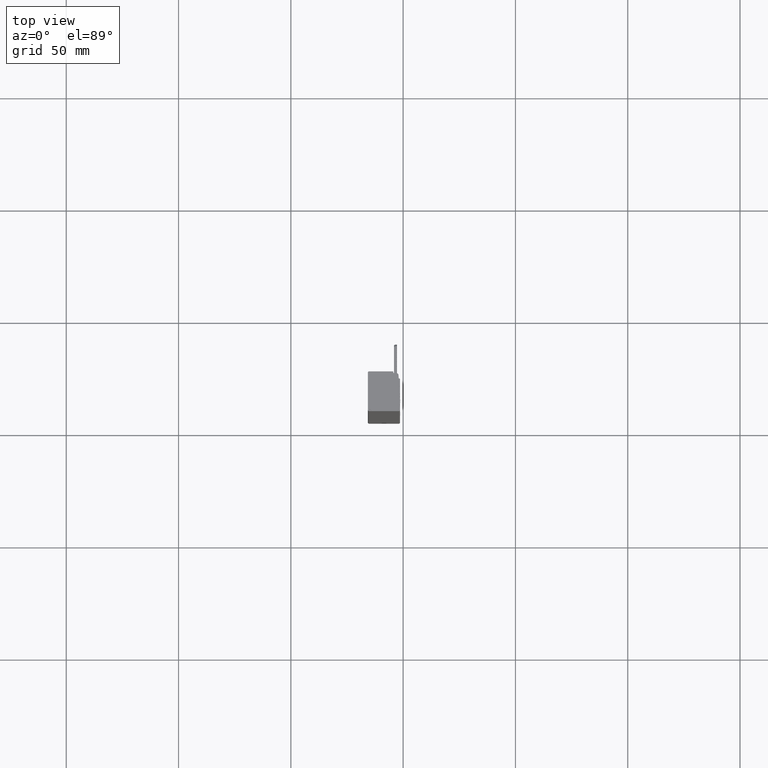
[diagram: clean part render]
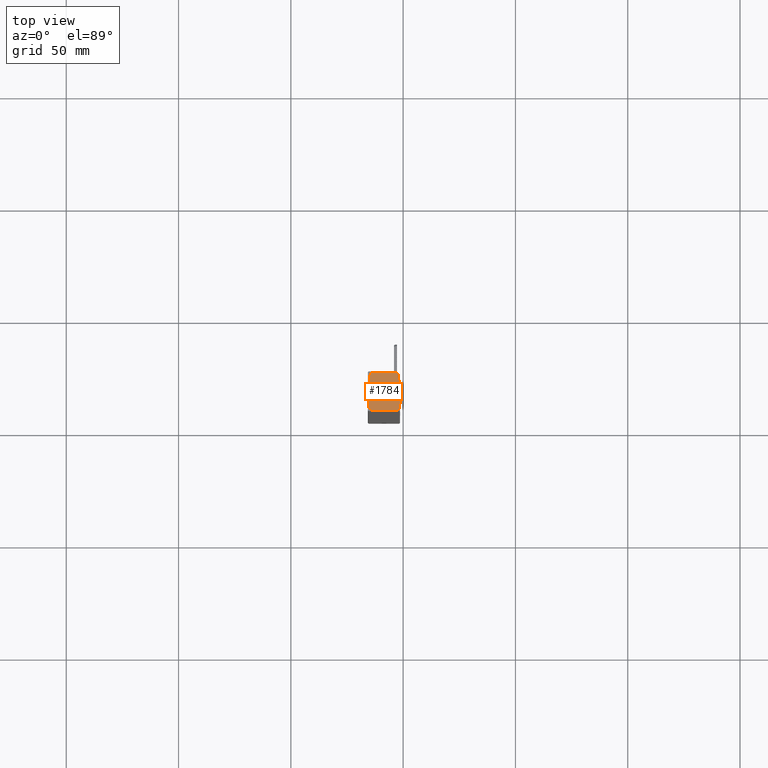
[diagram: same view with one face highlighted and labeled with its STEP entity id]
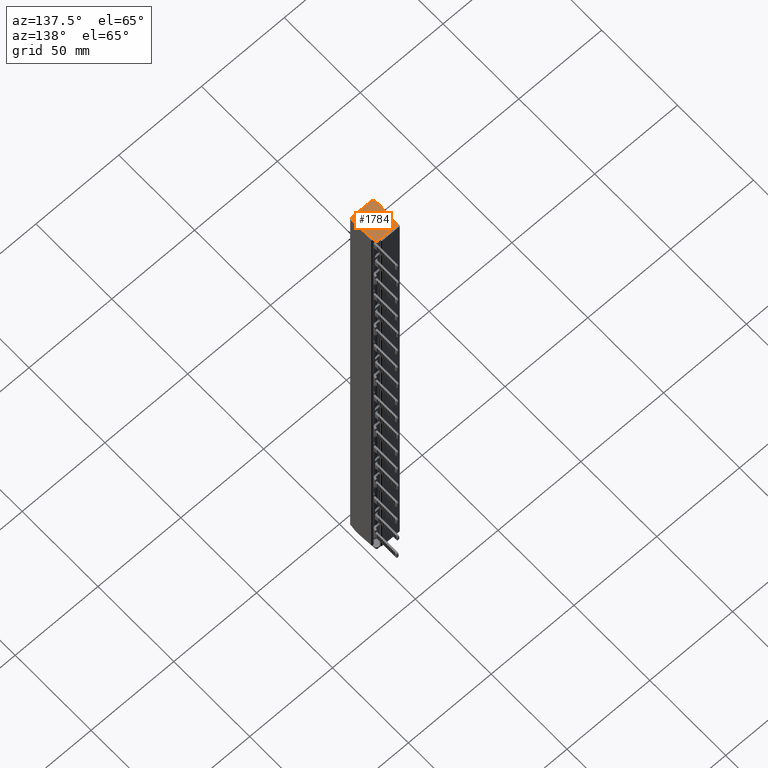
[diagram: same view with one face highlighted and labeled with its STEP entity id]
A machine part, top view. The second image highlights one B-rep face of the part: STEP entity #1784.
A second angle (auxiliary view) of the same face is appended — the face is thin or edge-on in the first view.
In plain terms, the highlighted planar face has unit normal (-0, 0, -1).
Its self-contained STEP definition (entity closure, byte-faithful):
#741 = EDGE_CURVE ( 'NONE', #7545, #7583, #32114, .T. ) ;
#745 = EDGE_CURVE ( 'NONE', #7583, #7519, #30167, .T. ) ;
#753 = EDGE_CURVE ( 'NONE', #7503, #7532, #32070, .T. ) ;
#775 = EDGE_CURVE ( 'NONE', #7503, #7613, #12866, .T. ) ;
#776 = EDGE_CURVE ( 'NONE', #7519, #7549, #32103, .T. ) ;
#777 = EDGE_CURVE ( 'NONE', #7507, #7613, #30165, .T. ) ;
#778 = EDGE_CURVE ( 'NONE', #7545, #7532, #12830, .T. ) ;
#782 = EDGE_CURVE ( 'NONE', #7543, #7549, #12852, .T. ) ;
#800 = EDGE_CURVE ( 'NONE', #7543, #7507, #32142, .T. ) ;
#1784 = ADVANCED_FACE ( 'NONE', ( #16747 ), #16722, .F. ) ;
#7503 = VERTEX_POINT ( 'NONE', #24971 ) ;
#7507 = VERTEX_POINT ( 'NONE', #25016 ) ;
#7519 = VERTEX_POINT ( 'NONE', #25069 ) ;
#7532 = VERTEX_POINT ( 'NONE', #25038 ) ;
#7543 = VERTEX_POINT ( 'NONE', #25078 ) ;
#7545 = VERTEX_POINT ( 'NONE', #25083 ) ;
#7549 = VERTEX_POINT ( 'NONE', #25048 ) ;
#7583 = VERTEX_POINT ( 'NONE', #25052 ) ;
#7613 = VERTEX_POINT ( 'NONE', #25080 ) ;
#8494 = EDGE_LOOP ( 'NONE', ( #27996, #27833, #27902, #27923, #27835, #27972, #28000, #27951, #27953 ) ) ;
#12685 = CARTESIAN_POINT ( 'NONE',  ( 747.9273182331131700, 271.2303188408080800, 220.2761870778997500 ) ) ;
#12691 = CARTESIAN_POINT ( 'NONE',  ( 746.9361667977062800, 271.1554394107350300, 220.2761870779001200 ) ) ;
#12693 = DIRECTION ( 'NONE',  ( -1.000000000000000000, 0.0000000000000000000, 3.630092859321160300E-013 ) ) ;
#12700 = CARTESIAN_POINT ( 'NONE',  ( 748.1523828007293600, 268.2512217867913500, 220.2761870778997500 ) ) ;
#12701 = CARTESIAN_POINT ( 'NONE',  ( 748.4124181040291400, 265.2733481653543800, 220.2761870778996400 ) ) ;
#12702 = CARTESIAN_POINT ( 'NONE',  ( 748.5802440432986500, 261.7312418943985800, 220.2761870778995800 ) ) ;
#12703 = CARTESIAN_POINT ( 'NONE',  ( 748.6025064608710400, 261.1737771771862500, 220.2761870778995800 ) ) ;
#12704 = CARTESIAN_POINT ( 'NONE',  ( 748.6367497531689400, 260.0598900168788500, 220.2761870778995800 ) ) ;
#12723 = DIRECTION ( 'NONE',  ( -3.579359031391503700E-013, 0.0000000000000000000, -1.000000000000000000 ) ) ;
#12733 = DIRECTION ( 'NONE',  ( -1.000000000000000000, 0.0000000000000000000, 3.630092859321160300E-013 ) ) ;
#12734 = CARTESIAN_POINT ( 'NONE',  ( 748.6552312605528000, 259.5028510379296400, 220.2761870778995800 ) ) ;
#12745 = CARTESIAN_POINT ( 'NONE',  ( 736.2077294437911000, 271.1554394107350300, 220.2761870779039600 ) ) ;
#12747 = CARTESIAN_POINT ( 'NONE',  ( 748.5996878920602700, 258.1098505685099600, 220.2761870778995800 ) ) ;
#12752 = DIRECTION ( 'NONE',  ( -3.579359031391503700E-013, 0.0000000000000000000, -1.000000000000000000 ) ) ;
#12770 = CARTESIAN_POINT ( 'NONE',  ( 748.4631548412812700, 257.2782742347265000, 220.2761870778996400 ) ) ;
#12774 = CARTESIAN_POINT ( 'NONE',  ( 748.2974998823941600, 256.4487409166395700, 220.2761870778996100 ) ) ;
#12823 = CARTESIAN_POINT ( 'NONE',  ( 734.6927173035053300, 257.2899769730117900, 220.2761870779044700 ) ) ;
#12824 = DIRECTION ( 'NONE',  ( -1.000000000000000000, 0.0000000000000000000, 3.630092859321160300E-013 ) ) ;
#12826 = CARTESIAN_POINT ( 'NONE',  ( 734.5826635521496000, 261.8342988816320900, 220.2761870779045200 ) ) ;
#12830 = LINE ( 'NONE', #12865, #32076 ) ;
#12831 = CARTESIAN_POINT ( 'NONE',  ( 735.0738748169757200, 269.1958145676104600, 220.2761870779043000 ) ) ;
#12834 = CARTESIAN_POINT ( 'NONE',  ( 734.5235459777949200, 260.1327937520780400, 220.2761870779045200 ) ) ;
#12836 = CARTESIAN_POINT ( 'NONE',  ( 734.7197909647706000, 264.6690396290242700, 220.2761870779044700 ) ) ;
#12837 = CARTESIAN_POINT ( 'NONE',  ( 734.8968304165304100, 266.9325015974168900, 220.2761870779044100 ) ) ;
#12838 = DIRECTION ( 'NONE',  ( -1.000000000000000000, -0.0000000000000000000, -0.0000000000000000000 ) ) ;
#12840 = CARTESIAN_POINT ( 'NONE',  ( 734.5594536960618400, 261.2672304678915800, 220.2761870779045200 ) ) ;
#12842 = CARTESIAN_POINT ( 'NONE',  ( 748.1312168841221800, 255.6494153144361400, 220.2761870779041300 ) ) ;
#12843 = CARTESIAN_POINT ( 'NONE',  ( 734.5034713028391000, 259.5647887885986100, 220.2761870779045200 ) ) ;
#12845 = DIRECTION ( 'NONE',  ( 1.000000000000000000, 4.210712518863409700E-015, -0.0000000000000000000 ) ) ;
#12852 = LINE ( 'NONE', #12842, #32077 ) ;
#12857 = CARTESIAN_POINT ( 'NONE',  ( 734.5540811426660600, 258.1357709160637900, 220.2761870779045200 ) ) ;
#12858 = DIRECTION ( 'NONE',  ( -0.06996254797235183800, -0.9975496187564889500, -0.0000000000000000000 ) ) ;
#12859 = DIRECTION ( 'NONE',  ( -3.579359031391503700E-013, 0.0000000000000000000, -1.000000000000000000 ) ) ;
#12862 = CARTESIAN_POINT ( 'NONE',  ( 735.0738748169757200, 269.1958145676104600, 220.2761870779043200 ) ) ;
#12863 = CARTESIAN_POINT ( 'NONE',  ( 734.8609481584409200, 256.4485228718443800, 220.2761870779044700 ) ) ;
#12864 = CARTESIAN_POINT ( 'NONE',  ( 747.3227694801188400, 256.6433912180461300, 220.2761870778999800 ) ) ;
#12865 = CARTESIAN_POINT ( 'NONE',  ( 735.2810238450030100, 272.1494153143450500, 220.2761870779001200 ) ) ;
#12866 = LINE ( 'NONE', #12831, #32080 ) ;
#12886 = DIRECTION ( 'NONE',  ( -1.000000000000000000, 0.0000000000000000000, 3.630092859321160300E-013 ) ) ;
#12904 = CARTESIAN_POINT ( 'NONE',  ( 735.8356349925605900, 256.6433912180459100, 220.2761870779041300 ) ) ;
#12907 = DIRECTION ( 'NONE',  ( -3.579359031391503700E-013, 0.0000000000000000000, -1.000000000000000000 ) ) ;
#16722 = PLANE ( 'NONE',  #22656 ) ;
#16738 = DIRECTION ( 'NONE',  ( -3.579359031391503700E-013, 0.0000000000000000000, -1.000000000000000000 ) ) ;
#16747 = FACE_OUTER_BOUND ( 'NONE', #8494, .T. ) ;
#16767 = CARTESIAN_POINT ( 'NONE',  ( 734.6100890346739300, 262.4012470311102400, 220.2761870779045200 ) ) ;
#16769 = DIRECTION ( 'NONE',  ( -1.000000000000000000, 0.0000000000000000000, 3.579359031391503700E-013 ) ) ;
#22656 = AXIS2_PLACEMENT_3D ( 'NONE', #16767, #16738, #16769 ) ;
#24971 = CARTESIAN_POINT ( 'NONE',  ( 735.2161891600918600, 271.2249804975748500, 220.2761870779043000 ) ) ;
#25016 = CARTESIAN_POINT ( 'NONE',  ( 734.8609481584409200, 256.4485228718443800, 220.2761870779044700 ) ) ;
#25038 = CARTESIAN_POINT ( 'NONE',  ( 736.2077294437911000, 272.1494153143450500, 220.2761870779020200 ) ) ;
#25048 = CARTESIAN_POINT ( 'NONE',  ( 747.3227694801187200, 255.6494153144361400, 220.2761870779020200 ) ) ;
#25052 = CARTESIAN_POINT ( 'NONE',  ( 747.9273182331131700, 271.2303188408080800, 220.2761870778997500 ) ) ;
#25069 = CARTESIAN_POINT ( 'NONE',  ( 748.2974998823941600, 256.4487409166395700, 220.2761870778996100 ) ) ;
#25078 = CARTESIAN_POINT ( 'NONE',  ( 735.8356349925603600, 255.6494153144360800, 220.2761870779041300 ) ) ;
#25080 = CARTESIAN_POINT ( 'NONE',  ( 735.0738748169757200, 269.1958145676104600, 220.2761870779043200 ) ) ;
#25083 = CARTESIAN_POINT ( 'NONE',  ( 746.9361667977060500, 272.1494153143450500, 220.2761870779001200 ) ) ;
#27833 = ORIENTED_EDGE ( 'NONE', *, *, #745, .F. ) ;
#27835 = ORIENTED_EDGE ( 'NONE', *, *, #753, .F. ) ;
#27902 = ORIENTED_EDGE ( 'NONE', *, *, #741, .F. ) ;
#27923 = ORIENTED_EDGE ( 'NONE', *, *, #778, .T. ) ;
#27951 = ORIENTED_EDGE ( 'NONE', *, *, #800, .F. ) ;
#27953 = ORIENTED_EDGE ( 'NONE', *, *, #782, .T. ) ;
#27972 = ORIENTED_EDGE ( 'NONE', *, *, #775, .T. ) ;
#27996 = ORIENTED_EDGE ( 'NONE', *, *, #776, .F. ) ;
#28000 = ORIENTED_EDGE ( 'NONE', *, *, #777, .F. ) ;
#30165 = B_SPLINE_CURVE_WITH_KNOTS ( 'NONE', 3,
 ( #12863, #12823, #12857, #12843, #12834, #12840, #12826, #12836, #12837, #12862 ),
 .UNSPECIFIED., .F., .F.,
 ( 4, 2, 2, 2, 4 ),
 ( 1.436565554576646200E-010, 0.002578272627072355400, 0.004275976227939367800, 0.005973679828806342100, 0.01276449423227406900 ),
 .UNSPECIFIED. ) ;
#30167 = B_SPLINE_CURVE_WITH_KNOTS ( 'NONE', 3,
 ( #12685, #12700, #12701, #12702, #12703, #12704, #12734, #12747, #12770, #12774 ),
 .UNSPECIFIED., .F., .F.,
 ( 4, 2, 2, 2, 4 ),
 ( 0.0000000000000000000, 0.008954599468774760900, 0.01062672175557161800, 0.01229884404236839200, 0.01482971666074014100 ),
 .UNSPECIFIED. ) ;
#32070 = CIRCLE ( 'NONE', #32107, 0.9939759036099449200 ) ;
#32076 = VECTOR ( 'NONE', #12838, 1000.000000000000000 ) ;
#32077 = VECTOR ( 'NONE', #12845, 1000.000000000000000 ) ;
#32080 = VECTOR ( 'NONE', #12858, 1000.000000000000000 ) ;
#32100 = AXIS2_PLACEMENT_3D ( 'NONE', #12864, #12859, #12824 ) ;
#32103 = CIRCLE ( 'NONE', #32100, 0.9939759036099449200 ) ;
#32106 = AXIS2_PLACEMENT_3D ( 'NONE', #12691, #12723, #12693 ) ;
#32107 = AXIS2_PLACEMENT_3D ( 'NONE', #12745, #12752, #12733 ) ;
#32114 = CIRCLE ( 'NONE', #32106, 0.9939759036099449200 ) ;
#32142 = CIRCLE ( 'NONE', #32197, 0.9939759036099449200 ) ;
#32197 = AXIS2_PLACEMENT_3D ( 'NONE', #12904, #12907, #12886 ) ;